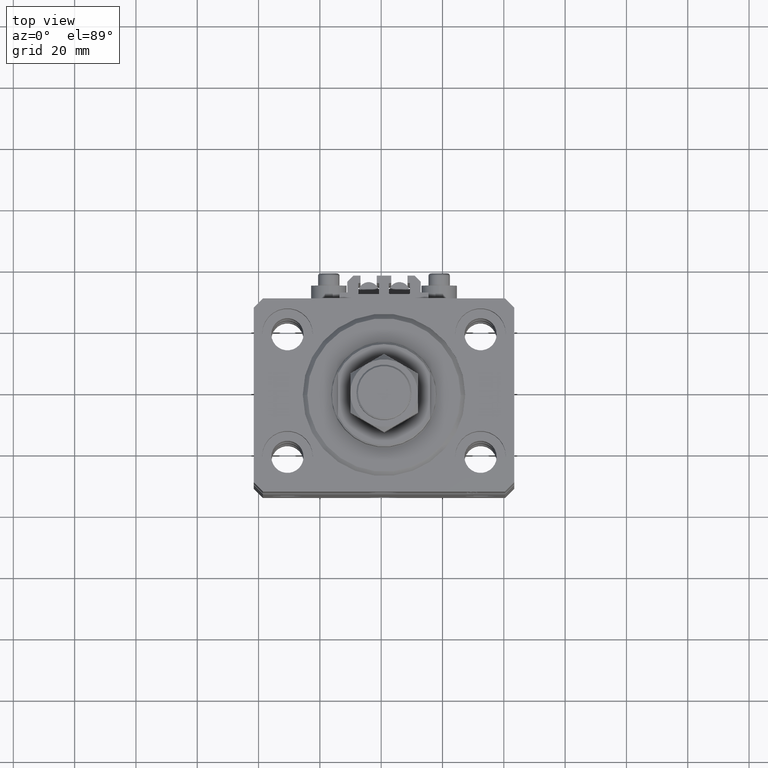
[diagram: clean part render]
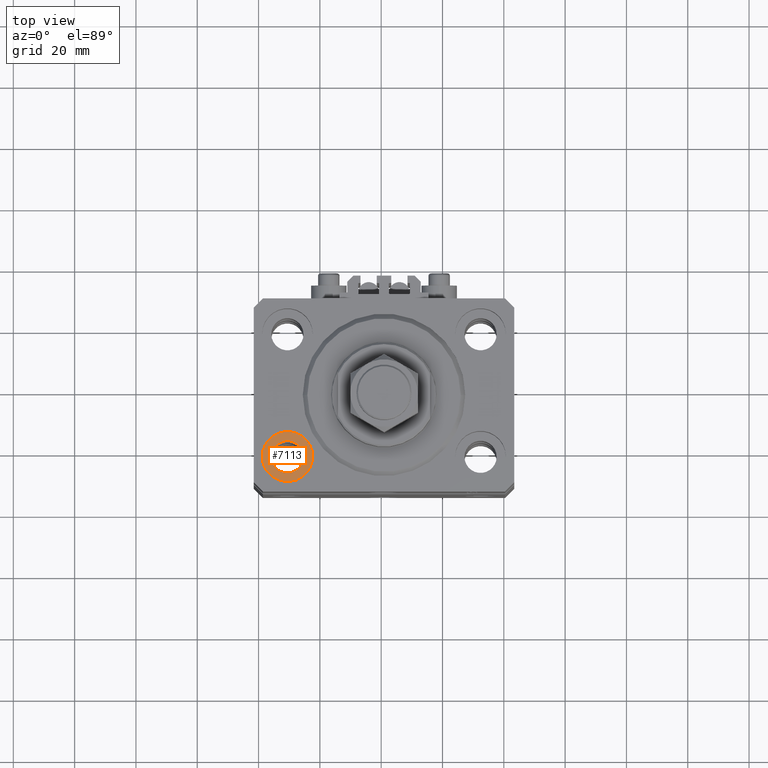
[diagram: same view with one face highlighted and labeled with its STEP entity id]
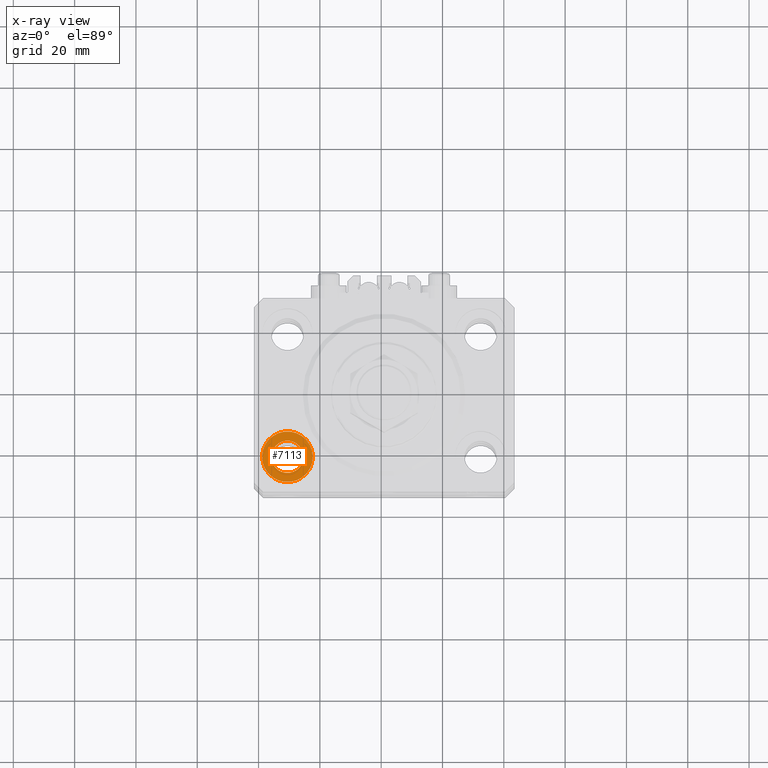
[diagram: x-ray of the same camera — body ghosted, the highlighted face saturated]
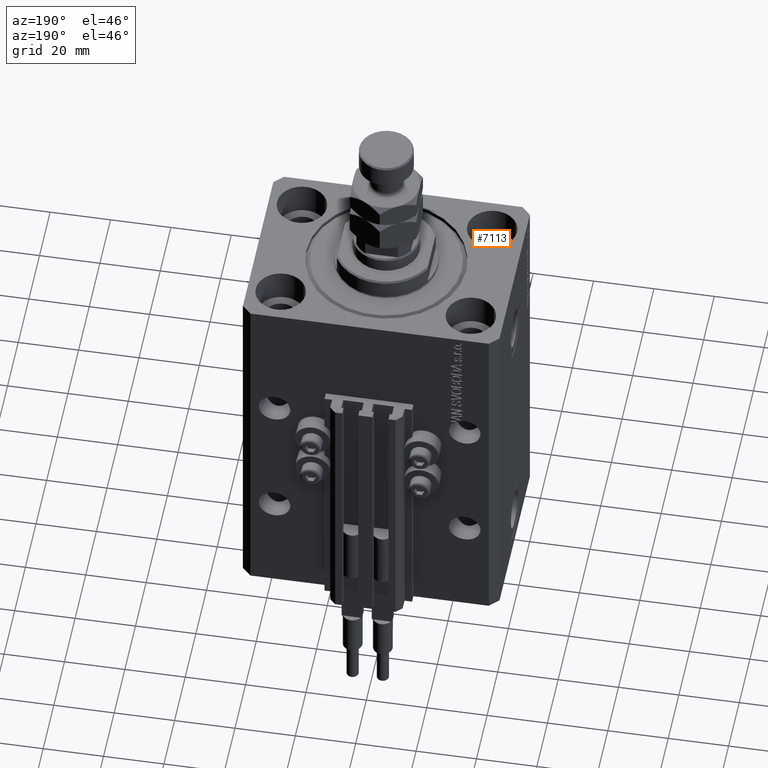
[diagram: same view with one face highlighted and labeled with its STEP entity id]
A machine part, top view. The second image highlights one B-rep face of the part: STEP entity #7113.
The next image is the same camera in x-ray: the body ghosted, the highlighted face saturated — about 0% of this face is hidden behind the body in this view.
A second angle (auxiliary view) of the same face is appended — the face is thin or edge-on in the first view.
In plain terms, the highlighted planar face has unit normal (0, 0, 1).
Its self-contained STEP definition (entity closure, byte-faithful):
#42 = CARTESIAN_POINT ( 'NONE',  ( -39.75000000000000000, -20.00000000000000000, -11.00000000000000000 ) ) ;
#735 = AXIS2_PLACEMENT_3D ( 'NONE', #5383, #24778, #44965 ) ;
#2092 = VERTEX_POINT ( 'NONE', #49795 ) ;
#2365 = DIRECTION ( 'NONE',  ( 1.000000000000000000, 0.000000000000000000, 0.000000000000000000 ) ) ;
#2501 = VERTEX_POINT ( 'NONE', #42 ) ;
#2768 = VERTEX_POINT ( 'NONE', #7669 ) ;
#3167 = DIRECTION ( 'NONE',  ( 0.000000000000000000, 0.000000000000000000, 1.000000000000000000 ) ) ;
#4447 = CIRCLE ( 'NONE', #19348, 8.250000000000000000 ) ;
#5383 = CARTESIAN_POINT ( 'NONE',  ( -31.50000000000000000, -20.00000000000000000, -11.00000000000000000 ) ) ;
#6656 = EDGE_LOOP ( 'NONE', ( #34004, #42470 ) ) ;
#7113 = ADVANCED_FACE ( 'NONE', ( #21106, #29117 ), #40243, .T. ) ;
#7599 = EDGE_CURVE ( 'NONE', #30021, #2768, #37295, .T. ) ;
#7669 = CARTESIAN_POINT ( 'NONE',  ( -36.75000000000000000, -20.00000000000000000, -11.00000000000000000 ) ) ;
#10171 = DIRECTION ( 'NONE',  ( 1.000000000000000000, 0.000000000000000000, 0.000000000000000000 ) ) ;
#15006 = CARTESIAN_POINT ( 'NONE',  ( -31.50000000000000000, -20.00000000000000000, -11.00000000000000000 ) ) ;
#16970 = DIRECTION ( 'NONE',  ( 0.000000000000000000, 0.000000000000000000, 1.000000000000000000 ) ) ;
#18603 = CIRCLE ( 'NONE', #32660, 8.250000000000000000 ) ;
#19348 = AXIS2_PLACEMENT_3D ( 'NONE', #36034, #20013, #43557 ) ;
#20013 = DIRECTION ( 'NONE',  ( 0.000000000000000000, 0.000000000000000000, 1.000000000000000000 ) ) ;
#21106 = FACE_BOUND ( 'NONE', #6656, .T. ) ;
#24778 = DIRECTION ( 'NONE',  ( 0.000000000000000000, 0.000000000000000000, 1.000000000000000000 ) ) ;
#24830 = EDGE_CURVE ( 'NONE', #2092, #2501, #4447, .T. ) ;
#25500 = CARTESIAN_POINT ( 'NONE',  ( -26.25000000000000000, -20.00000000000000000, -11.00000000000000000 ) ) ;
#26365 = CIRCLE ( 'NONE', #735, 5.250000000000000888 ) ;
#29117 = FACE_OUTER_BOUND ( 'NONE', #34906, .T. ) ;
#29372 = DIRECTION ( 'NONE',  ( 1.000000000000000000, 0.000000000000000000, -0.000000000000000000 ) ) ;
#30021 = VERTEX_POINT ( 'NONE', #25500 ) ;
#31607 = EDGE_CURVE ( 'NONE', #2501, #2092, #18603, .T. ) ;
#32660 = AXIS2_PLACEMENT_3D ( 'NONE', #15006, #38814, #2365 ) ;
#34004 = ORIENTED_EDGE ( 'NONE', *, *, #7599, .F. ) ;
#34722 = ORIENTED_EDGE ( 'NONE', *, *, #24830, .T. ) ;
#34776 = AXIS2_PLACEMENT_3D ( 'NONE', #40766, #16970, #29372 ) ;
#34808 = AXIS2_PLACEMENT_3D ( 'NONE', #45860, #3167, #10171 ) ;
#34906 = EDGE_LOOP ( 'NONE', ( #34722, #44775 ) ) ;
#36034 = CARTESIAN_POINT ( 'NONE',  ( -31.50000000000000000, -20.00000000000000000, -11.00000000000000000 ) ) ;
#37295 = CIRCLE ( 'NONE', #34808, 5.250000000000000888 ) ;
#38814 = DIRECTION ( 'NONE',  ( 0.000000000000000000, 0.000000000000000000, 1.000000000000000000 ) ) ;
#40243 = PLANE ( 'NONE',  #34776 ) ;
#40442 = EDGE_CURVE ( 'NONE', #2768, #30021, #26365, .T. ) ;
#40766 = CARTESIAN_POINT ( 'NONE',  ( -31.50000000000000000, -20.00000000000000000, -11.00000000000000000 ) ) ;
#42470 = ORIENTED_EDGE ( 'NONE', *, *, #40442, .F. ) ;
#43557 = DIRECTION ( 'NONE',  ( 1.000000000000000000, 0.000000000000000000, 0.000000000000000000 ) ) ;
#44775 = ORIENTED_EDGE ( 'NONE', *, *, #31607, .T. ) ;
#44965 = DIRECTION ( 'NONE',  ( 1.000000000000000000, 0.000000000000000000, 0.000000000000000000 ) ) ;
#45860 = CARTESIAN_POINT ( 'NONE',  ( -31.50000000000000000, -20.00000000000000000, -11.00000000000000000 ) ) ;
#49795 = CARTESIAN_POINT ( 'NONE',  ( -23.25000000000000000, -20.00000000000000000, -11.00000000000000000 ) ) ;